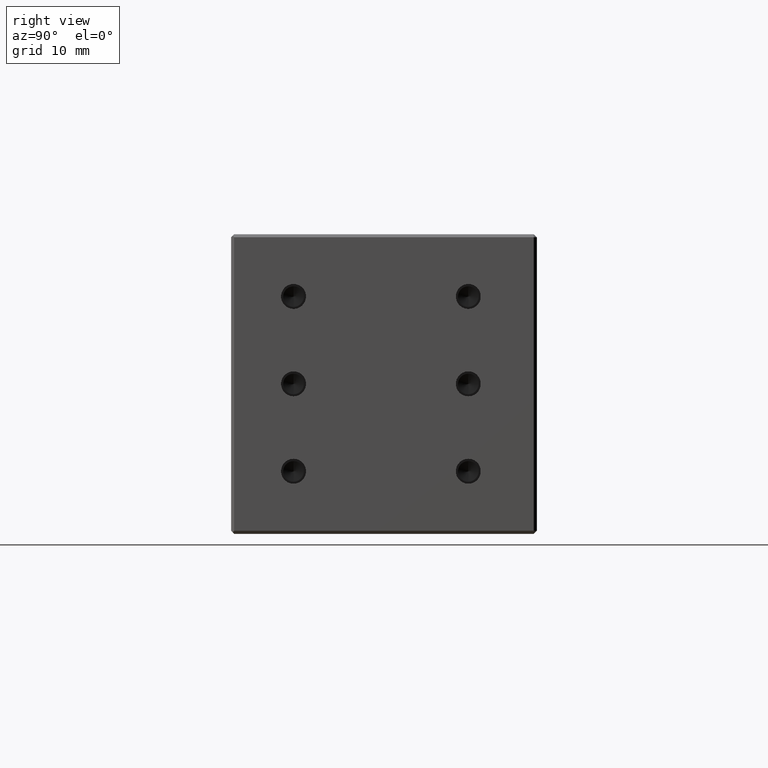
[diagram: clean part render]
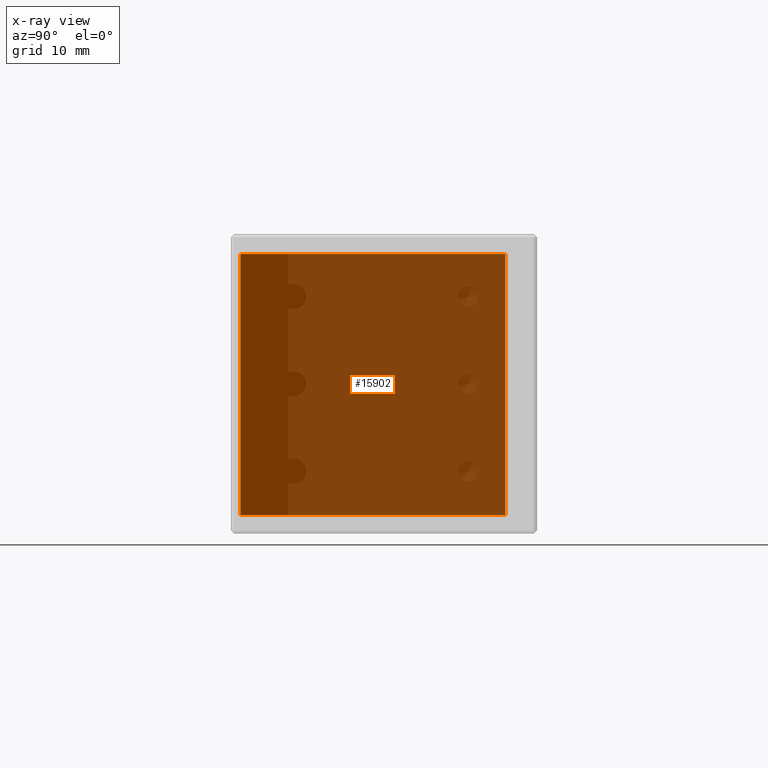
[diagram: x-ray — body ghosted, one internal face saturated and labeled with its STEP entity id]
A machine part, right view, then the same camera in x-ray: the body is ghosted and one INTERNAL B-rep face — a face not visible from any outside direction — is saturated and labeled: STEP entity #15902.
In plain terms, the highlighted planar face has unit normal (-0.7071, -0.7071, 0).
Its self-contained STEP definition (entity closure, byte-faithful):
#671 = CARTESIAN_POINT ( 'NONE',  ( 8.745894682920001300, 14.46055126761199700, -37.00000000000009900 ) ) ;
#802 = EDGE_CURVE ( 'NONE', #15807, #19461, #25936, .T. ) ;
#1518 = ORIENTED_EDGE ( 'NONE', *, *, #26211, .T. ) ;
#2021 = VECTOR ( 'NONE', #19859, 1000.000000000000000 ) ;
#2106 = DIRECTION ( 'NONE',  ( 0.7071067811865795500, -0.7071067811865153800, 0.0000000000000000000 ) ) ;
#3446 = CARTESIAN_POINT ( 'NONE',  ( -12.46730875267449100, 35.67375470320976700, -37.00000000000005000 ) ) ;
#3836 = CARTESIAN_POINT ( 'NONE',  ( -12.46730875267449300, 35.67375470320976700, 4.799999999995044700 ) ) ;
#3846 = EDGE_LOOP ( 'NONE', ( #14122, #28104, #1518, #27255 ) ) ;
#4859 = CARTESIAN_POINT ( 'NONE',  ( 29.95909811851615200, -6.752652167982228400, -16.10000000000250600 ) ) ;
#5272 = FACE_OUTER_BOUND ( 'NONE', #3846, .T. ) ;
#6381 = CARTESIAN_POINT ( 'NONE',  ( 8.745894682920001300, 14.46055126761199700, 4.799999999995089100 ) ) ;
#8614 = CARTESIAN_POINT ( 'NONE',  ( -12.46730875267649600, 35.67375470321351100, -16.10000000000250600 ) ) ;
#11950 = VECTOR ( 'NONE', #13927, 1000.000000000000000 ) ;
#12925 = CARTESIAN_POINT ( 'NONE',  ( 29.95909811851604600, -6.752652167982363500, 4.799999999995066900 ) ) ;
#13927 = DIRECTION ( 'NONE',  ( 0.0000000000000000000, 0.0000000000000000000, 1.000000000000000000 ) ) ;
#14122 = ORIENTED_EDGE ( 'NONE', *, *, #28008, .F. ) ;
#14131 = DIRECTION ( 'NONE',  ( 0.7071067811865796600, -0.7071067811865153800, 0.0000000000000000000 ) ) ;
#15495 = PLANE ( 'NONE',  #23679 ) ;
#15593 = DIRECTION ( 'NONE',  ( -0.7071067811865154900, -0.7071067811865796600, 0.0000000000000000000 ) ) ;
#15807 = VERTEX_POINT ( 'NONE', #12925 ) ;
#15902 = ADVANCED_FACE ( 'NONE', ( #5272 ), #15495, .F. ) ;
#16328 = LINE ( 'NONE', #8614, #28280 ) ;
#17988 = LINE ( 'NONE', #4859, #11950 ) ;
#19461 = VERTEX_POINT ( 'NONE', #3836 ) ;
#19805 = EDGE_CURVE ( 'NONE', #24331, #20195, #22759, .T. ) ;
#19859 = DIRECTION ( 'NONE',  ( -0.7071067811865796600, 0.7071067811865153800, -0.0000000000000000000 ) ) ;
#20195 = VERTEX_POINT ( 'NONE', #29191 ) ;
#22759 = LINE ( 'NONE', #671, #28746 ) ;
#23679 = AXIS2_PLACEMENT_3D ( 'NONE', #29085, #15593, #2106 ) ;
#24331 = VERTEX_POINT ( 'NONE', #3446 ) ;
#24399 = DIRECTION ( 'NONE',  ( 0.0000000000000000000, 0.0000000000000000000, 1.000000000000000000 ) ) ;
#25936 = LINE ( 'NONE', #6381, #2021 ) ;
#26211 = EDGE_CURVE ( 'NONE', #24331, #19461, #16328, .T. ) ;
#27255 = ORIENTED_EDGE ( 'NONE', *, *, #802, .F. ) ;
#28008 = EDGE_CURVE ( 'NONE', #20195, #15807, #17988, .T. ) ;
#28104 = ORIENTED_EDGE ( 'NONE', *, *, #19805, .F. ) ;
#28280 = VECTOR ( 'NONE', #24399, 1000.000000000000000 ) ;
#28746 = VECTOR ( 'NONE', #14131, 1000.000000000000000 ) ;
#29085 = CARTESIAN_POINT ( 'NONE',  ( -13.31583689009999800, 36.52228284062999100, -37.83600000000000600 ) ) ;
#29191 = CARTESIAN_POINT ( 'NONE',  ( 29.95909811851741400, -6.752652167982405200, -37.00000000000005000 ) ) ;